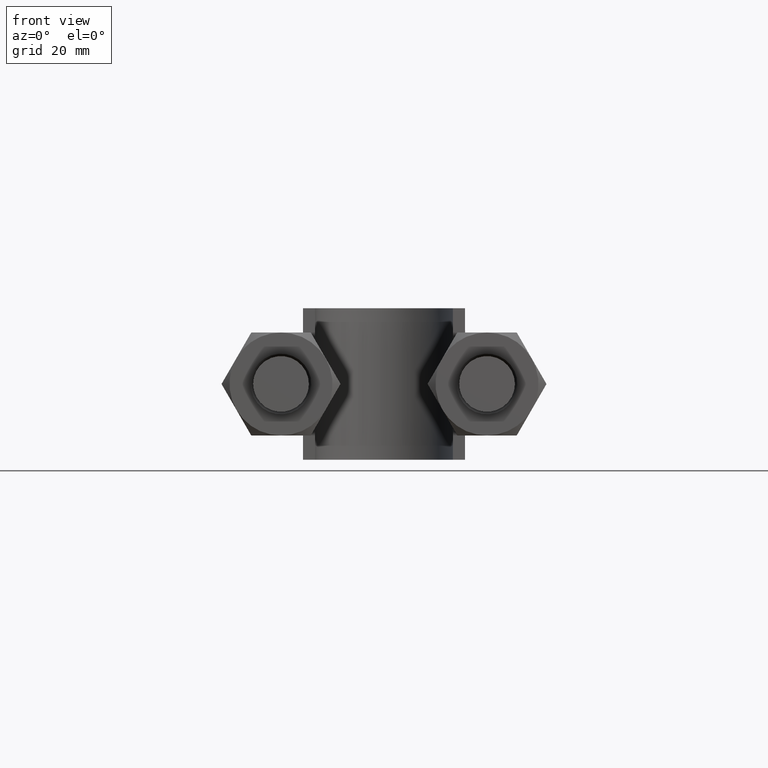
[diagram: clean part render]
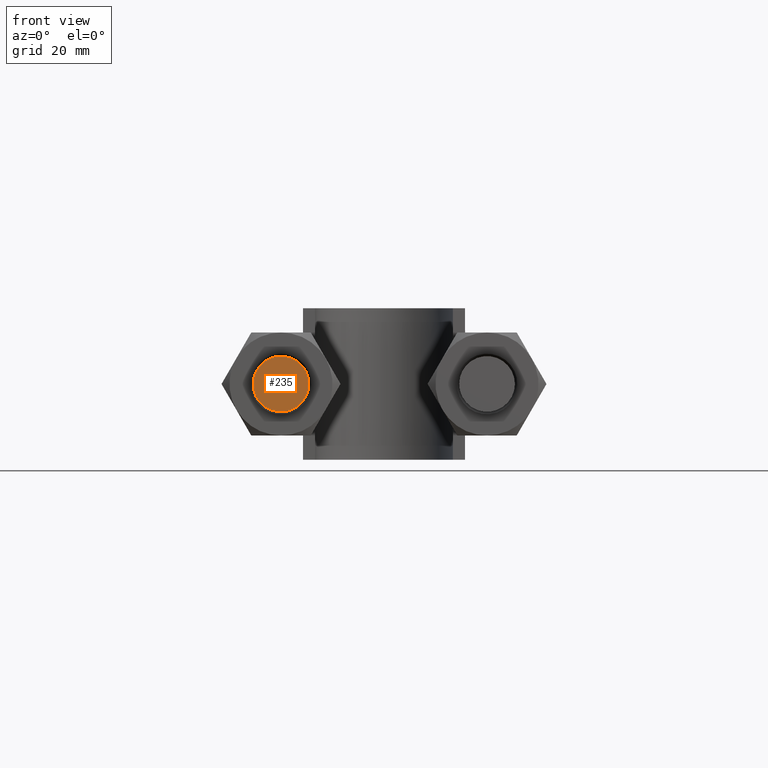
[diagram: same view with one face highlighted and labeled with its STEP entity id]
A machine part, front view. The second image highlights one B-rep face of the part: STEP entity #235.
In plain terms, the highlighted planar face has unit normal (-0, -1, 0).
Its self-contained STEP definition (entity closure, byte-faithful):
#235 = ADVANCED_FACE( '', ( #336 ), #337, .T. );
#336 = FACE_OUTER_BOUND( '', #1415, .T. );
#337 = PLANE( '', #1416 );
#1415 = EDGE_LOOP( '', ( #1673 ) );
#1416 = AXIS2_PLACEMENT_3D( '', #1674, #1675, #1676 );
#1673 = ORIENTED_EDGE( '', *, *, #2132, .T. );
#1674 = CARTESIAN_POINT( '', ( -17.0000000000000, 4.16366160299608E-015, -1.40829730689574E-016 ) );
#1675 = DIRECTION( '', ( -2.44921270764475E-016, -1.00000000000000, 3.06151588455594E-016 ) );
#1676 = DIRECTION( '', ( 1.00000000000000, -2.44921270764475E-016, -3.65835795450744E-047 ) );
#2132 = EDGE_CURVE( '', #2311, #2311, #2312, .T. );
#2311 = VERTEX_POINT( '', #2759 );
#2312 = CIRCLE( '', #2760, 4.60000000000000 );
#2759 = CARTESIAN_POINT( '', ( -12.4000000000000, 3.03702375747950E-015, -1.40829730689574E-016 ) );
#2760 = AXIS2_PLACEMENT_3D( '', #3166, #3167, #3168 );
#3166 = CARTESIAN_POINT( '', ( -17.0000000000000, 4.16366160299608E-015, -1.40829730689574E-016 ) );
#3167 = DIRECTION( '', ( -2.44921270764475E-016, -1.00000000000000, 3.06151588455594E-016 ) );
#3168 = DIRECTION( '', ( 1.00000000000000, -2.44921270764475E-016, -3.65835795450744E-047 ) );